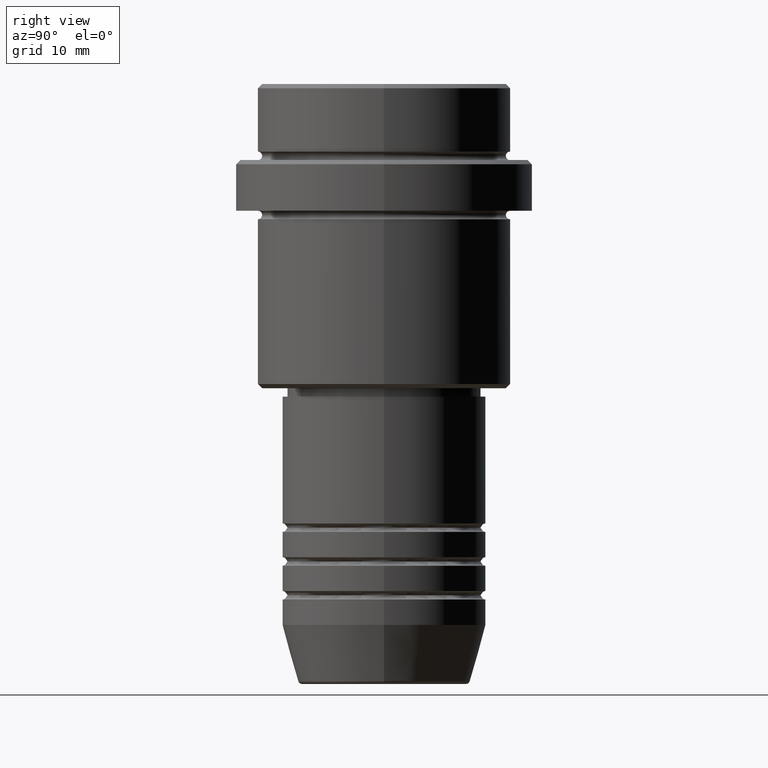
[diagram: clean part render]
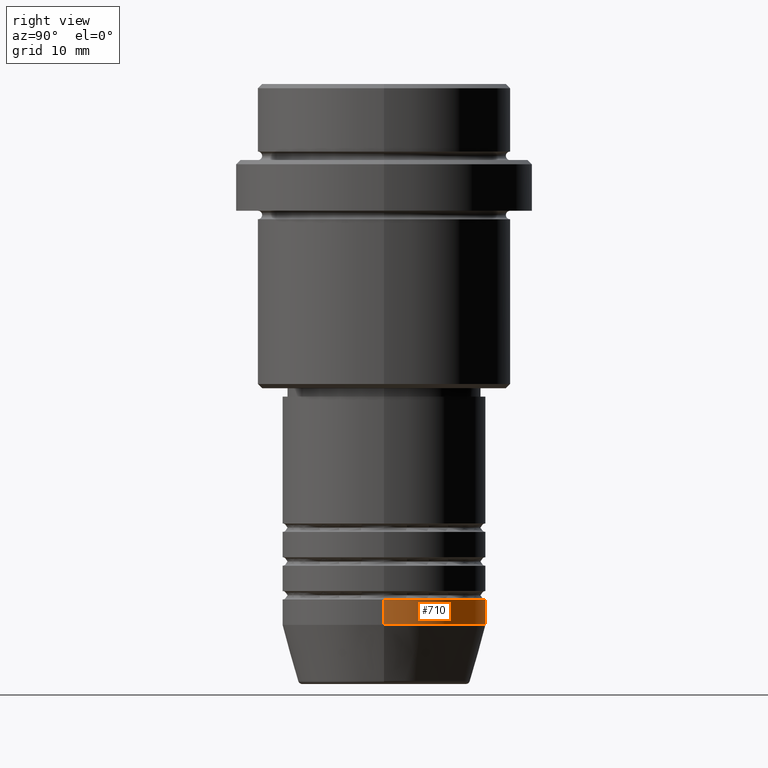
[diagram: same view with one face highlighted and labeled with its STEP entity id]
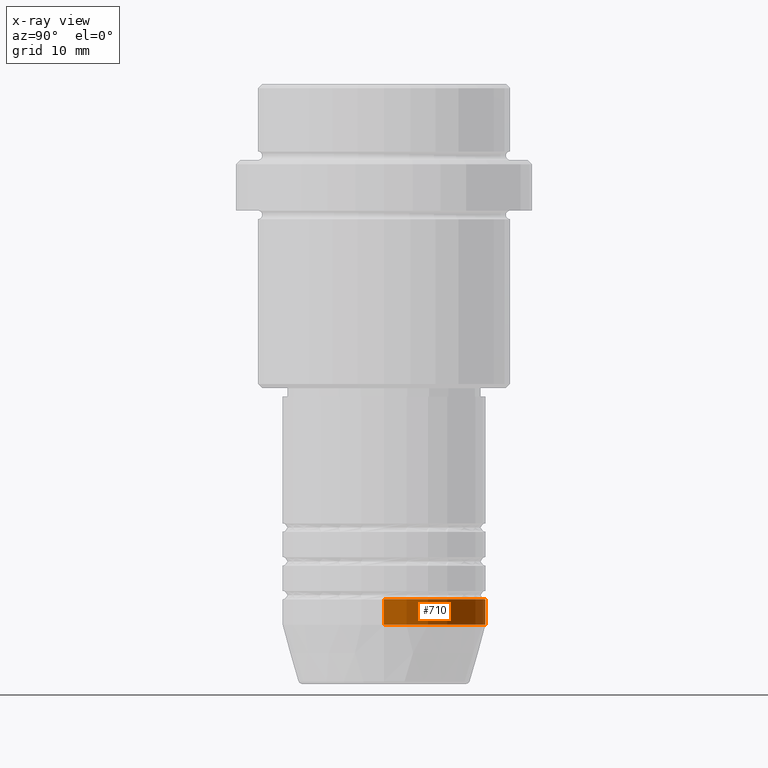
[diagram: x-ray of the same camera — body ghosted, the highlighted face saturated]
A machine part, right view. The second image highlights one B-rep face of the part: STEP entity #710.
The next image is the same camera in x-ray: the body ghosted, the highlighted face saturated — about 0% of this face is hidden behind the body in this view.
In plain terms, the highlighted cylindrical surface (partial cylindrical patch) has radius 12 mm, axis along (-0, -0, 1).
Its self-contained STEP definition (entity closure, byte-faithful):
#21 = DIRECTION ( 'NONE',  ( -0.000000000000000000, -0.000000000000000000, 1.000000000000000000 ) ) ;
#79 = DIRECTION ( 'NONE',  ( 1.000000000000000000, 0.000000000000000000, 0.000000000000000000 ) ) ;
#84 = DIRECTION ( 'NONE',  ( -0.000000000000000000, -0.000000000000000000, 1.000000000000000000 ) ) ;
#105 = CARTESIAN_POINT ( 'NONE',  ( -12.00000000000000000, 1.469576158976823947E-15, -61.00000000000000000 ) ) ;
#170 = VERTEX_POINT ( 'NONE', #540 ) ;
#201 = EDGE_CURVE ( 'NONE', #170, #1380, #370, .T. ) ;
#329 = FACE_OUTER_BOUND ( 'NONE', #1405, .T. ) ;
#370 = CIRCLE ( 'NONE', #656, 12.00000000000000000 ) ;
#459 = EDGE_CURVE ( 'NONE', #170, #1074, #1056, .T. ) ;
#488 = CARTESIAN_POINT ( 'NONE',  ( 0.000000000000000000, 0.000000000000000000, -64.00000000000000000 ) ) ;
#506 = ORIENTED_EDGE ( 'NONE', *, *, #201, .T. ) ;
#540 = CARTESIAN_POINT ( 'NONE',  ( 12.00000000000000000, 0.000000000000000000, -64.00000000000000000 ) ) ;
#613 = AXIS2_PLACEMENT_3D ( 'NONE', #1286, #732, #79 ) ;
#645 = VERTEX_POINT ( 'NONE', #105 ) ;
#656 = AXIS2_PLACEMENT_3D ( 'NONE', #488, #21, #684 ) ;
#657 = CYLINDRICAL_SURFACE ( 'NONE', #1090, 12.00000000000000000 ) ;
#684 = DIRECTION ( 'NONE',  ( 1.000000000000000000, 0.000000000000000000, 0.000000000000000000 ) ) ;
#698 = CIRCLE ( 'NONE', #613, 12.00000000000000000 ) ;
#710 = ADVANCED_FACE ( 'NONE', ( #329 ), #657, .T. ) ;
#719 = VECTOR ( 'NONE', #1001, 1000.000000000000000 ) ;
#732 = DIRECTION ( 'NONE',  ( -0.000000000000000000, -0.000000000000000000, 1.000000000000000000 ) ) ;
#806 = CARTESIAN_POINT ( 'NONE',  ( -12.00000000000000000, 1.469576158976823947E-15, 0.000000000000000000 ) ) ;
#839 = ORIENTED_EDGE ( 'NONE', *, *, #863, .T. ) ;
#863 = EDGE_CURVE ( 'NONE', #1380, #645, #1245, .T. ) ;
#889 = DIRECTION ( 'NONE',  ( -0.000000000000000000, -0.000000000000000000, 1.000000000000000000 ) ) ;
#929 = EDGE_CURVE ( 'NONE', #1074, #645, #698, .T. ) ;
#971 = CARTESIAN_POINT ( 'NONE',  ( 12.00000000000000000, 0.000000000000000000, -61.00000000000000000 ) ) ;
#978 = ORIENTED_EDGE ( 'NONE', *, *, #929, .F. ) ;
#987 = ORIENTED_EDGE ( 'NONE', *, *, #459, .F. ) ;
#1001 = DIRECTION ( 'NONE',  ( -0.000000000000000000, -0.000000000000000000, 1.000000000000000000 ) ) ;
#1056 = LINE ( 'NONE', #1287, #1187 ) ;
#1074 = VERTEX_POINT ( 'NONE', #971 ) ;
#1077 = CARTESIAN_POINT ( 'NONE',  ( 0.000000000000000000, 0.000000000000000000, 0.000000000000000000 ) ) ;
#1090 = AXIS2_PLACEMENT_3D ( 'NONE', #1077, #889, #1410 ) ;
#1164 = CARTESIAN_POINT ( 'NONE',  ( -12.00000000000000000, 1.469576158976823947E-15, -64.00000000000000000 ) ) ;
#1187 = VECTOR ( 'NONE', #84, 1000.000000000000000 ) ;
#1245 = LINE ( 'NONE', #806, #719 ) ;
#1286 = CARTESIAN_POINT ( 'NONE',  ( 0.000000000000000000, 0.000000000000000000, -61.00000000000000000 ) ) ;
#1287 = CARTESIAN_POINT ( 'NONE',  ( 12.00000000000000000, 0.000000000000000000, 0.000000000000000000 ) ) ;
#1380 = VERTEX_POINT ( 'NONE', #1164 ) ;
#1405 = EDGE_LOOP ( 'NONE', ( #506, #839, #978, #987 ) ) ;
#1410 = DIRECTION ( 'NONE',  ( 1.000000000000000000, 0.000000000000000000, 0.000000000000000000 ) ) ;